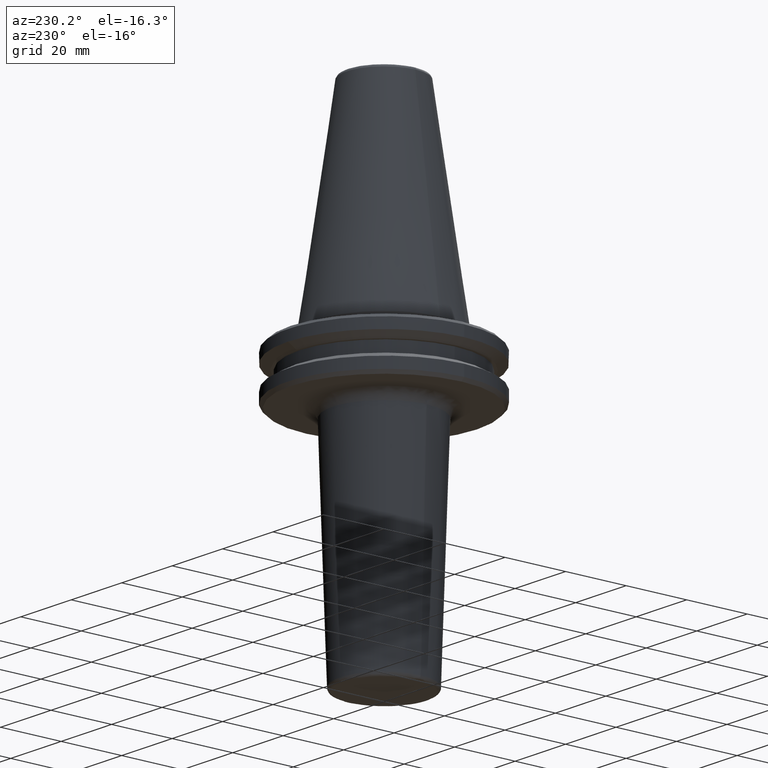
[diagram: clean part render]
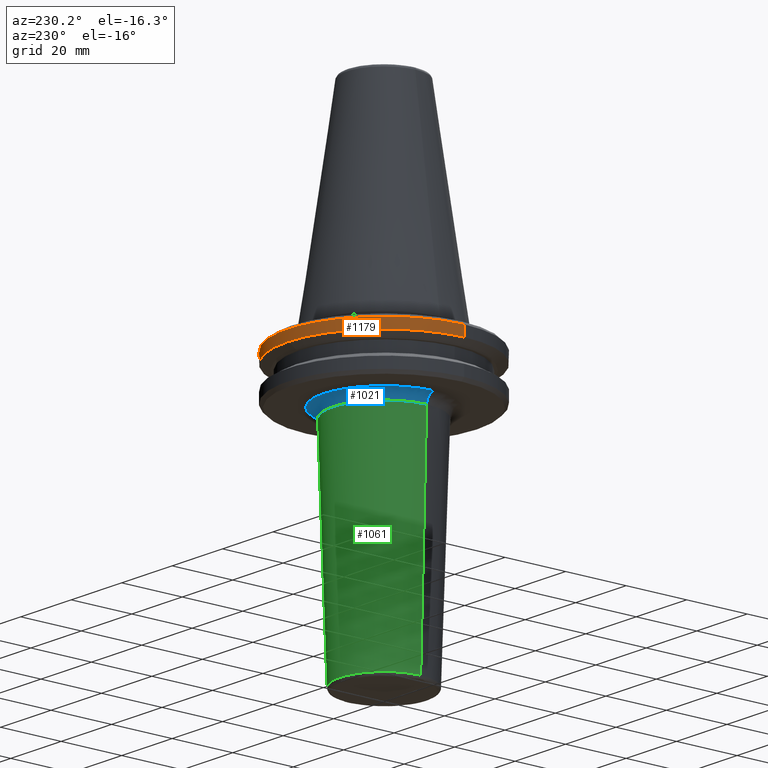
[diagram: same view with three faces highlighted in distinct colors, each labeled with its STEP entity id]
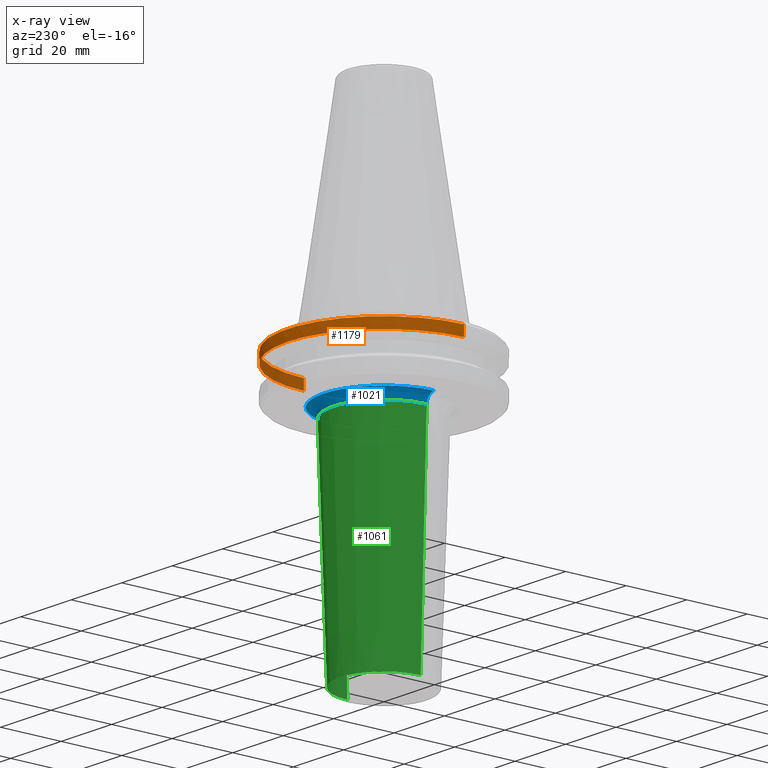
[diagram: x-ray of the same camera — body ghosted, the three highlighted faces saturated]
A machine part, auxiliary view with three faces highlighted in distinct colors.
The next image is the same camera in x-ray (body ghosted, the three faces saturated) — at least one of them is partly hidden behind the body in this view.
Their STEP definitions:

[orange] entity #1179 — the highlighted cylindrical surface (partial cylindrical patch) has radius 31.75 mm, axis along (0, 0, 1).
#19 = CARTESIAN_POINT ( 'NONE',  ( 3.888253587292846500E-015, 31.75000000000000000, -7.578163357943284800 ) ) ;
#80 = CIRCLE ( 'NONE', #944, 31.74999999999983300 ) ;
#120 = ORIENTED_EDGE ( 'NONE', *, *, #872, .T. ) ;
#130 = DIRECTION ( 'NONE',  ( 1.000000000000000000, 0.0000000000000000000, 0.0000000000000000000 ) ) ;
#139 = DIRECTION ( 'NONE',  ( -0.0000000000000000000, -0.0000000000000000000, 1.000000000000000000 ) ) ;
#147 = CARTESIAN_POINT ( 'NONE',  ( 0.0000000000000000000, 0.0000000000000000000, -4.199999999999926500 ) ) ;
#171 = AXIS2_PLACEMENT_3D ( 'NONE', #1142, #1003, #1284 ) ;
#213 = CARTESIAN_POINT ( 'NONE',  ( -31.75000000000000000, 3.888253587292846500E-015, -7.578163357943284800 ) ) ;
#223 = CARTESIAN_POINT ( 'NONE',  ( 31.74999999999983300, 0.0000000000000000000, -4.199999999999926500 ) ) ;
#258 = CARTESIAN_POINT ( 'NONE',  ( 31.75000000000000000, 0.0000000000000000000, -7.578163357943284800 ) ) ;
#365 = EDGE_LOOP ( 'NONE', ( #120, #1302, #1497, #884, #1115 ) ) ;
#436 = EDGE_CURVE ( 'NONE', #1039, #1320, #1125, .T. ) ;
#475 = EDGE_CURVE ( 'NONE', #1039, #723, #587, .T. ) ;
#587 = LINE ( 'NONE', #1376, #1318 ) ;
#609 = AXIS2_PLACEMENT_3D ( 'NONE', #620, #712, #718 ) ;
#620 = CARTESIAN_POINT ( 'NONE',  ( 0.0000000000000000000, 0.0000000000000000000, -7.578163357943284800 ) ) ;
#712 = DIRECTION ( 'NONE',  ( 0.0000000000000000000, 0.0000000000000000000, 1.000000000000000000 ) ) ;
#717 = VERTEX_POINT ( 'NONE', #213 ) ;
#718 = DIRECTION ( 'NONE',  ( 1.000000000000000000, 0.0000000000000000000, 0.0000000000000000000 ) ) ;
#723 = VERTEX_POINT ( 'NONE', #223 ) ;
#741 = DIRECTION ( 'NONE',  ( 0.0000000000000000000, 0.0000000000000000000, 1.000000000000000000 ) ) ;
#748 = CARTESIAN_POINT ( 'NONE',  ( 0.0000000000000000000, 0.0000000000000000000, -7.578163357943284800 ) ) ;
#819 = FACE_OUTER_BOUND ( 'NONE', #365, .T. ) ;
#829 = CIRCLE ( 'NONE', #609, 31.75000000000000000 ) ;
#872 = EDGE_CURVE ( 'NONE', #1320, #717, #829, .T. ) ;
#884 = ORIENTED_EDGE ( 'NONE', *, *, #475, .F. ) ;
#887 = VECTOR ( 'NONE', #1280, 1000.000000000000000 ) ;
#921 = CYLINDRICAL_SURFACE ( 'NONE', #171, 31.75000000000000000 ) ;
#944 = AXIS2_PLACEMENT_3D ( 'NONE', #147, #139, #130 ) ;
#1003 = DIRECTION ( 'NONE',  ( 0.0000000000000000000, 0.0000000000000000000, 1.000000000000000000 ) ) ;
#1039 = VERTEX_POINT ( 'NONE', #258 ) ;
#1040 = EDGE_CURVE ( 'NONE', #723, #1325, #80, .T. ) ;
#1115 = ORIENTED_EDGE ( 'NONE', *, *, #436, .T. ) ;
#1125 = CIRCLE ( 'NONE', #1168, 31.75000000000000000 ) ;
#1142 = CARTESIAN_POINT ( 'NONE',  ( 0.0000000000000000000, 0.0000000000000000000, 113.5216080541959500 ) ) ;
#1151 = LINE ( 'NONE', #1273, #887 ) ;
#1168 = AXIS2_PLACEMENT_3D ( 'NONE', #748, #741, #1508 ) ;
#1179 = ADVANCED_FACE ( 'NONE', ( #819 ), #921, .T. ) ;
#1261 = DIRECTION ( 'NONE',  ( 0.0000000000000000000, 0.0000000000000000000, 1.000000000000000000 ) ) ;
#1273 = CARTESIAN_POINT ( 'NONE',  ( -31.75000000000000000, 3.888253587292846500E-015, 113.5216080541959500 ) ) ;
#1280 = DIRECTION ( 'NONE',  ( 0.0000000000000000000, 0.0000000000000000000, 1.000000000000000000 ) ) ;
#1284 = DIRECTION ( 'NONE',  ( 1.000000000000000000, 0.0000000000000000000, 0.0000000000000000000 ) ) ;
#1285 = EDGE_CURVE ( 'NONE', #717, #1325, #1151, .T. ) ;
#1302 = ORIENTED_EDGE ( 'NONE', *, *, #1285, .T. ) ;
#1318 = VECTOR ( 'NONE', #1261, 1000.000000000000000 ) ;
#1320 = VERTEX_POINT ( 'NONE', #19 ) ;
#1325 = VERTEX_POINT ( 'NONE', #1426 ) ;
#1376 = CARTESIAN_POINT ( 'NONE',  ( 31.75000000000000000, 0.0000000000000000000, 113.5216080541959500 ) ) ;
#1426 = CARTESIAN_POINT ( 'NONE',  ( -31.74999999999983300, 3.888253587292836200E-015, -4.199999999999926500 ) ) ;
#1497 = ORIENTED_EDGE ( 'NONE', *, *, #1040, .F. ) ;
#1508 = DIRECTION ( 'NONE',  ( 1.000000000000000000, 0.0000000000000000000, 0.0000000000000000000 ) ) ;

[blue] entity #1021 — the highlighted face is a freeform B-spline surface patch.
#6 = CARTESIAN_POINT ( 'NONE',  ( 7.598485494639327900, 18.39434992628138600, -19.10000000000000100 ) ) ;
#11 = EDGE_CURVE ( 'NONE', #703, #547, #606, .T. ) ;
#21 = AXIS2_PLACEMENT_3D ( 'NONE', #215, #1501, #1225 ) ;
#39 = EDGE_CURVE ( 'NONE', #766, #826, #1429, .T. ) ;
#55 = CARTESIAN_POINT ( 'NONE',  ( 19.90166620396073300, 0.6085529503212857600, -19.10000000000000500 ) ) ;
#58 = CARTESIAN_POINT ( 'NONE',  ( -15.97558242757372900, 11.87727175151181300, -19.10000000000000500 ) ) ;
#63 = CARTESIAN_POINT ( 'NONE',  ( 19.90166620396073300, 0.0000000000000000000, -19.10000000000000500 ) ) ;
#64 = CARTESIAN_POINT ( 'NONE',  ( -15.24560217056686200, 12.82499818687935000, -19.10000000000000100 ) ) ;
#66 = EDGE_CURVE ( 'NONE', #766, #547, #1034, .T. ) ;
#70 = CARTESIAN_POINT ( 'NONE',  ( 18.89388723929875300, 6.267715761570081600, -19.10000000000000500 ) ) ;
#76 = CARTESIAN_POINT ( 'NONE',  ( 19.23083617400312000, 5.194768591320698000, -19.10000000000000500 ) ) ;
#102 = CARTESIAN_POINT ( 'NONE',  ( 16.90333148302327300, 0.0000000000000000000, -22.00005550930209000 ) ) ;
#106 = CARTESIAN_POINT ( 'NONE',  ( 8.406558014828048500, 18.04465368373723100, -19.10000000000001200 ) ) ;
#114 = CARTESIAN_POINT ( 'NONE',  ( 15.04383488236192300, 13.10131881861373100, -19.09999999999999800 ) ) ;
#141 = CARTESIAN_POINT ( 'NONE',  ( 18.25685931475489500, 7.950859837655827700, -19.10000000000000900 ) ) ;
#166 = CARTESIAN_POINT ( 'NONE',  ( -14.55824528529787000, 13.58698725340960500, -19.10000000000000900 ) ) ;
#184 = CARTESIAN_POINT ( 'NONE',  ( 3.898628062247354800, 19.51637052742025300, -19.10000000000000900 ) ) ;
#190 = CARTESIAN_POINT ( 'NONE',  ( 5.812745466972859100, 19.05315308159160300, -19.10000000000000500 ) ) ;
#194 = CARTESIAN_POINT ( 'NONE',  ( 10.96073024572635100, 16.61161293343491300, -19.10000000000000100 ) ) ;
#196 = CARTESIAN_POINT ( 'NONE',  ( 4.724686275076234000, 19.33754260911768300, -19.10000000000000500 ) ) ;
#197 = CARTESIAN_POINT ( 'NONE',  ( 0.0000000000000000000, 0.0000000000000000000, -22.00005550930209000 ) ) ;
#209 = CARTESIAN_POINT ( 'NONE',  ( 15.90600721118451400, 12.04007475394795000, -19.10000000000000100 ) ) ;
#214 = CARTESIAN_POINT ( 'NONE',  ( 16.70458015769348800, 10.81853029926495700, -19.10000000000000500 ) ) ;
#215 = CARTESIAN_POINT ( 'NONE',  ( -19.90166620396073300, 2.437251181437956700E-015, -22.10000000000000500 ) ) ;
#232 = CARTESIAN_POINT ( 'NONE',  ( 19.58312381656615000, 3.546534532317296800, -19.10000000000000100 ) ) ;
#235 = CARTESIAN_POINT ( 'NONE',  ( 16.97309617215207900, 10.39430603166016500, -19.10000000000000900 ) ) ;
#252 = CARTESIAN_POINT ( 'NONE',  ( 19.57308386510088000, 3.601540084186433800, -19.10000000000000500 ) ) ;
#279 = CARTESIAN_POINT ( 'NONE',  ( 6.725748720945180300, 18.74186887789922900, -19.10000000000001600 ) ) ;
#288 = CARTESIAN_POINT ( 'NONE',  ( -2.571572111785215500, 19.73902294037124600, -19.10000000000000900 ) ) ;
#297 = CARTESIAN_POINT ( 'NONE',  ( -3.097006395698181300, 19.66027751160029200, -19.10000000000000500 ) ) ;
#305 = CARTESIAN_POINT ( 'NONE',  ( 18.70568706075825500, 6.798577512691573500, -19.10000000000000500 ) ) ;
#308 = CARTESIAN_POINT ( 'NONE',  ( -3.359321256760603000, 19.61636097319980000, -19.10000000000000500 ) ) ;
#314 = CARTESIAN_POINT ( 'NONE',  ( 16.74915908291985300, 10.74937643075038600, -19.10000000000000500 ) ) ;
#317 = CARTESIAN_POINT ( 'NONE',  ( 3.661036126866240800, 19.56204254994694500, -19.10000000000000500 ) ) ;
#334 = CARTESIAN_POINT ( 'NONE',  ( 19.90166620396073300, 0.0000000000000000000, -19.10000000000000500 ) ) ;
#338 = FACE_OUTER_BOUND ( 'NONE', #1119, .T. ) ;
#357 = ORIENTED_EDGE ( 'NONE', *, *, #11, .F. ) ;
#372 = CARTESIAN_POINT ( 'NONE',  ( 18.60665554369093800, 7.062605429751516600, -19.10000000000000100 ) ) ;
#396 = CARTESIAN_POINT ( 'NONE',  ( 3.700678777715772100, 19.55458196215729700, -19.10000000000000500 ) ) ;
#402 = CARTESIAN_POINT ( 'NONE',  ( 2.424759400017324900, 19.79088342820656600, -19.10000000000000500 ) ) ;
#408 = CARTESIAN_POINT ( 'NONE',  ( 1.216930634841989000, 19.90163377541363900, -19.10000000000000100 ) ) ;
#412 = CARTESIAN_POINT ( 'NONE',  ( -0.6084653174210052900, 19.90168241823427300, -19.09999999999999800 ) ) ;
#420 = CARTESIAN_POINT ( 'NONE',  ( 18.53392269167737200, 7.250628934924967500, -19.10000000000000900 ) ) ;
#423 = CARTESIAN_POINT ( 'NONE',  ( -1.517485296806783300, 19.86016320579301100, -19.10000000000000900 ) ) ;
#428 = CARTESIAN_POINT ( 'NONE',  ( 11.03381702116087700, 16.56317078052143500, -19.10000000000000100 ) ) ;
#430 = CARTESIAN_POINT ( 'NONE',  ( -19.90166620396074000, 1.217461441101294300, -19.10000000000001200 ) ) ;
#446 = CARTESIAN_POINT ( 'NONE',  ( 7.869557974751641500, 18.28107397828527400, -19.10000000000000500 ) ) ;
#457 = AXIS2_PLACEMENT_3D ( 'NONE', #649, #630, #534 ) ;
#463 = CARTESIAN_POINT ( 'NONE',  ( 17.27539394088444200, 9.891434641472884000, -19.10000000000000500 ) ) ;
#474 = CARTESIAN_POINT ( 'NONE',  ( 11.17619927277234400, 16.46745170917846600, -19.10000000000000100 ) ) ;
#531 = CARTESIAN_POINT ( 'NONE',  ( -17.02554403890777100, 10.32763073298519400, -19.10000000000000500 ) ) ;
#534 = DIRECTION ( 'NONE',  ( 1.000000000000000000, 0.0000000000000000000, 0.0000000000000000000 ) ) ;
#541 = CARTESIAN_POINT ( 'NONE',  ( -16.61161293343448300, 10.96073024572747700, -19.10000000000000500 ) ) ;
#546 = CARTESIAN_POINT ( 'NONE',  ( 9.459978414387899500, 17.53233950041788700, -19.10000000000000500 ) ) ;
#547 = VERTEX_POINT ( 'NONE', #569 ) ;
#548 = CARTESIAN_POINT ( 'NONE',  ( -16.56317078052314400, 11.03381702115915900, -19.10000000000000100 ) ) ;
#556 = CARTESIAN_POINT ( 'NONE',  ( 10.32763073299417300, 17.02554403890431100, -19.10000000000000900 ) ) ;
#559 = CARTESIAN_POINT ( 'NONE',  ( -16.46745170918173100, 11.17619927276907700, -19.10000000000000500 ) ) ;
#569 = CARTESIAN_POINT ( 'NONE',  ( -19.90166620396073300, 2.437251181437956700E-015, -19.10000000000000500 ) ) ;
#576 = CARTESIAN_POINT ( 'NONE',  ( 11.38872373606291400, 16.32258852878667100, -19.10000000000000500 ) ) ;
#606 = B_SPLINE_CURVE_WITH_KNOTS ( 'NONE', 3,
 ( #63, #55, #1383, #1156, #1012, #992, #1404, #232, #1055, #252, #1123, #76, #70, #305, #372, #1486, #420, #1183, #141, #1492, #463, #235, #812, #314, #214, #209, #114, #892, #1479, #1317, #576, #474, #428, #194, #556, #546, #106, #446, #6, #1111, #680, #672, #279, #190, #196, #1112, #184, #866, #396, #317, #975, #402, #408, #412, #423, #288, #297, #308, #757, #763, #1471, #647, #653, #1089, #1456, #1464, #993, #1447, #752, #780, #989, #859, #666, #676, #777, #1348, #1354, #1228, #1234, #166, #64, #58, #639, #559, #548, #541, #531, #878, #658, #1378, #1106, #1361, #871, #1082, #967, #1099, #1367, #1247, #1449, #1374, #770, #1078, #855, #1209, #430, #1224 ),
 .UNSPECIFIED., .F., .F.,
 ( 4, 1, 1, 1, 1, 1, 2, 2, 1, 1, 1, 1, 2, 2, 1, 1, 1, 2, 2, 2, 1, 1, 1, 2, 2, 1, 1, 1, 1, 2, 2, 1, 1, 1, 1, 1, 2, 2, 2, 1, 1, 1, 1, 1, 2, 2, 1, 1, 1, 1, 2, 2, 1, 1, 1, 2, 2, 2, 1, 1, 1, 2, 2, 1, 1, 1, 1, 2, 2, 1, 1, 1, 1, 1, 2, 2, 4 ),
 ( 0.0000000000000000000, 0.03125000000000108200, 0.04687500000000162400, 0.05468750000000188700, 0.05859375000000202600, 0.06054687500000207500, 0.06152343750000208200, 0.06250000000000208200, 0.09375000000000227600, 0.1093750000000024100, 0.1171875000000024700, 0.1210937500000025300, 0.1230468750000025700, 0.1250000000000026100, 0.1562500000000028600, 0.1718750000000028900, 0.1796875000000029100, 0.1835937500000029700, 0.1875000000000030300, 0.2500000000000043300, 0.2812500000000050500, 0.2968750000000054400, 0.3046875000000056600, 0.3085937500000057700, 0.3125000000000058300, 0.3437500000000063800, 0.3593750000000067700, 0.3671875000000069400, 0.3710937500000070500, 0.3730468750000070500, 0.3750000000000070500, 0.4062500000000067700, 0.4218750000000067200, 0.4296875000000067200, 0.4335937500000067200, 0.4355468750000067200, 0.4365234375000067200, 0.4375000000000067700, 0.5000000000000060000, 0.5312500000000056600, 0.5468750000000054400, 0.5546875000000052200, 0.5585937500000051100, 0.5605468750000051100, 0.5615234375000050000, 0.5625000000000048800, 0.5937500000000050000, 0.6093750000000051100, 0.6171875000000052200, 0.6210937500000052200, 0.6230468750000051100, 0.6250000000000051100, 0.6562500000000050000, 0.6718750000000050000, 0.6796875000000050000, 0.6835937500000050000, 0.6875000000000050000, 0.7500000000000047700, 0.7812500000000045500, 0.7968750000000045500, 0.8046875000000044400, 0.8085937500000044400, 0.8125000000000044400, 0.8437500000000041100, 0.8593750000000038900, 0.8671875000000038900, 0.8710937500000037700, 0.8730468750000036600, 0.8750000000000036600, 0.9062500000000031100, 0.9218750000000027800, 0.9296875000000025500, 0.9335937500000024400, 0.9355468750000024400, 0.9365234375000023300, 0.9375000000000022200, 1.000000000000000000 ),
 .UNSPECIFIED. ) ;
#629 = CARTESIAN_POINT ( 'NONE',  ( -19.90166620396073300, 2.437251181437956700E-015, -19.10000000000000500 ) ) ;
#630 = DIRECTION ( 'NONE',  ( 0.0000000000000000000, 1.000000000000000000, 0.0000000000000000000 ) ) ;
#638 = CARTESIAN_POINT ( 'NONE',  ( -19.90166620396072600, 39.80333240792145200, -19.10000000000000900 ) ) ;
#639 = CARTESIAN_POINT ( 'NONE',  ( -16.32258852879208900, 11.38872373605748200, -19.10000000000000500 ) ) ;
#647 = CARTESIAN_POINT ( 'NONE',  ( -3.601540084186906300, 19.57308386510080200, -19.10000000000000100 ) ) ;
#649 = CARTESIAN_POINT ( 'NONE',  ( 19.90166620396073300, 0.0000000000000000000, -22.10000000000000500 ) ) ;
#653 = CARTESIAN_POINT ( 'NONE',  ( -4.255859014509368000, 19.45201853682077300, -19.10000000000000500 ) ) ;
#658 = CARTESIAN_POINT ( 'NONE',  ( -18.04465368374178200, 8.406558014816262400, -19.10000000000000900 ) ) ;
#659 = DIRECTION ( 'NONE',  ( 1.000000000000000000, 0.0000000000000000000, 0.0000000000000000000 ) ) ;
#666 = CARTESIAN_POINT ( 'NONE',  ( -9.891434641452452300, 17.27539394089751200, -19.10000000000000500 ) ) ;
#672 = CARTESIAN_POINT ( 'NONE',  ( 7.363194873656711400, 18.48949062872929600, -19.10000000000000500 ) ) ;
#676 = CARTESIAN_POINT ( 'NONE',  ( -10.39430603164824200, 16.97309617215971000, -19.10000000000000500 ) ) ;
#680 = CARTESIAN_POINT ( 'NONE',  ( 7.403821060719579400, 18.47326414180898600, -19.10000000000000900 ) ) ;
#703 = VERTEX_POINT ( 'NONE', #334 ) ;
#715 = CARTESIAN_POINT ( 'NONE',  ( 19.90166620396073300, 39.80333240792145200, -19.10000000000000900 ) ) ;
#721 = CARTESIAN_POINT ( 'NONE',  ( 19.90166620396073300, 0.0000000000000000000, -19.10000000000000500 ) ) ;
#729 = CARTESIAN_POINT ( 'NONE',  ( -18.19038921177860500, 2.227680192344921700E-015, -19.10000000000000500 ) ) ;
#734 = CARTESIAN_POINT ( 'NONE',  ( -18.19038921177860100, 36.38077842355720300, -19.10000000000000500 ) ) ;
#739 = CARTESIAN_POINT ( 'NONE',  ( 18.19038921177860500, 36.38077842355720300, -19.10000000000000500 ) ) ;
#746 = CARTESIAN_POINT ( 'NONE',  ( 18.19038921177860500, 0.0000000000000000000, -19.10000000000000500 ) ) ;
#752 = CARTESIAN_POINT ( 'NONE',  ( -7.250628934923097000, 18.53392269167765600, -19.10000000000000100 ) ) ;
#757 = CARTESIAN_POINT ( 'NONE',  ( -3.490378117068294400, 19.59326674799579800, -19.10000000000000500 ) ) ;
#763 = CARTESIAN_POINT ( 'NONE',  ( -3.546523792152270500, 19.58312580376471200, -19.10000000000000500 ) ) ;
#766 = VERTEX_POINT ( 'NONE', #1475 ) ;
#770 = CARTESIAN_POINT ( 'NONE',  ( -19.55458196215673200, 3.700678777717206100, -19.10000000000000100 ) ) ;
#777 = CARTESIAN_POINT ( 'NONE',  ( -10.60763933823960600, 16.83929933825730500, -19.10000000000000500 ) ) ;
#780 = CARTESIAN_POINT ( 'NONE',  ( -7.286625428863263000, 18.51980372642518800, -19.10000000000000500 ) ) ;
#812 = CARTESIAN_POINT ( 'NONE',  ( 16.83929933825271500, 10.60763933824678200, -19.10000000000000500 ) ) ;
#818 = ORIENTED_EDGE ( 'NONE', *, *, #39, .F. ) ;
#821 =( BOUNDED_SURFACE ( )  B_SPLINE_SURFACE ( 3, 3, ( 
 ( #1182, #948, #937, #852 ),
 ( #849, #841, #836, #831 ),
 ( #746, #739, #734, #729 ),
 ( #721, #715, #638, #629 ) ),
 .UNSPECIFIED., .F., .F., .T. ) 
 B_SPLINE_SURFACE_WITH_KNOTS ( ( 4, 4 ),
 ( 4, 4 ),
 ( 0.0000000000000000000, 1.000000000000000000 ),
 ( 0.0000000000000000000, 1.000000000000000000 ),
 .UNSPECIFIED. ) 
 GEOMETRIC_REPRESENTATION_ITEM ( )  RATIONAL_B_SPLINE_SURFACE ( (
 ( 1.000000000000000000, 0.3333333333333334300, 0.3333333333333334300, 1.000000000000000000),
 ( 0.8125259019625589200, 0.2708419673208530300, 0.2708419673208530300, 0.8125259019625589200),
 ( 0.8125259019625589200, 0.2708419673208530300, 0.2708419673208530300, 0.8125259019625589200),
 ( 1.000000000000000000, 0.3333333333333334300, 0.3333333333333334300, 1.000000000000000000) ) ) 
 REPRESENTATION_ITEM ( '' )  SURFACE ( )  );
#826 = VERTEX_POINT ( 'NONE', #102 ) ;
#831 = CARTESIAN_POINT ( 'NONE',  ( -16.96034238549883700, 2.077042901484432900E-015, -20.28972843503505900 ) ) ;
#836 = CARTESIAN_POINT ( 'NONE',  ( -16.96034238549883000, 33.92068477099766000, -20.28972843503505900 ) ) ;
#841 = CARTESIAN_POINT ( 'NONE',  ( 16.96034238549883400, 33.92068477099766000, -20.28972843503505900 ) ) ;
#849 = CARTESIAN_POINT ( 'NONE',  ( 16.96034238549883700, 0.0000000000000000000, -20.28972843503505900 ) ) ;
#852 = CARTESIAN_POINT ( 'NONE',  ( -16.90333148302326900, 2.070061079561112700E-015, -22.00005550930209000 ) ) ;
#855 = CARTESIAN_POINT ( 'NONE',  ( -19.56595427102708800, 3.640067678153116900, -19.10000000000000100 ) ) ;
#859 = CARTESIAN_POINT ( 'NONE',  ( -8.865317161797088700, 17.84041010356866900, -19.10000000000000500 ) ) ;
#866 = CARTESIAN_POINT ( 'NONE',  ( 3.760117208533674000, 19.54330316152550400, -19.10000000000000100 ) ) ;
#871 = CARTESIAN_POINT ( 'NONE',  ( -18.47326414180941300, 7.403821060718473600, -19.10000000000000900 ) ) ;
#878 = CARTESIAN_POINT ( 'NONE',  ( -17.53233950042395500, 9.459978414372189400, -19.10000000000000500 ) ) ;
#892 = CARTESIAN_POINT ( 'NONE',  ( 13.58698725341668700, 14.55824528529078400, -19.09999999999999800 ) ) ;
#911 = CIRCLE ( 'NONE', #457, 2.999999999999999100 ) ;
#937 = CARTESIAN_POINT ( 'NONE',  ( -16.90333148302326500, 33.80666296604653100, -22.00005550930209400 ) ) ;
#948 = CARTESIAN_POINT ( 'NONE',  ( 16.90333148302326900, 33.80666296604653100, -22.00005550930209400 ) ) ;
#967 = CARTESIAN_POINT ( 'NONE',  ( -18.74186887789468500, 6.725748720956852700, -19.10000000000000500 ) ) ;
#975 = CARTESIAN_POINT ( 'NONE',  ( 3.640064938850050300, 19.56595477801714700, -19.10000000000000100 ) ) ;
#989 = CARTESIAN_POINT ( 'NONE',  ( -7.950859837640272200, 18.25685931476484600, -19.10000000000000900 ) ) ;
#992 = CARTESIAN_POINT ( 'NONE',  ( 19.61635432281416400, 3.359357199942360600, -19.10000000000000900 ) ) ;
#993 = CARTESIAN_POINT ( 'NONE',  ( -7.062605429745297600, 18.60665554369190400, -19.10000000000000900 ) ) ;
#1012 = CARTESIAN_POINT ( 'NONE',  ( 19.66026509754710700, 3.097073489637464300, -19.10000000000000900 ) ) ;
#1021 = ADVANCED_FACE ( 'NONE', ( #338 ), #821, .F. ) ;
#1034 = CIRCLE ( 'NONE', #21, 2.999999999999999100 ) ;
#1055 = CARTESIAN_POINT ( 'NONE',  ( 19.57631007565930800, 3.583954887416756800, -19.10000000000000900 ) ) ;
#1078 = CARTESIAN_POINT ( 'NONE',  ( -19.56204254994666800, 3.661036126866968700, -19.10000000000000100 ) ) ;
#1082 = CARTESIAN_POINT ( 'NONE',  ( -18.48949062872958000, 7.363194873655980500, -19.10000000000000500 ) ) ;
#1089 = CARTESIAN_POINT ( 'NONE',  ( -5.194768591294165500, 19.23083617400723700, -19.10000000000000100 ) ) ;
#1092 = EDGE_CURVE ( 'NONE', #826, #703, #911, .T. ) ;
#1099 = CARTESIAN_POINT ( 'NONE',  ( -19.05315308158366600, 5.812745466993293400, -19.10000000000000500 ) ) ;
#1106 = CARTESIAN_POINT ( 'NONE',  ( -18.39434992628281400, 7.598485494635647300, -19.10000000000000500 ) ) ;
#1111 = CARTESIAN_POINT ( 'NONE',  ( 7.481760333146739100, 18.44183943272017200, -19.10000000000000500 ) ) ;
#1112 = CARTESIAN_POINT ( 'NONE',  ( 4.174934496895686700, 19.46004352868530100, -19.10000000000000900 ) ) ;
#1119 = EDGE_LOOP ( 'NONE', ( #818, #1192, #357, #1340 ) ) ;
#1123 = CARTESIAN_POINT ( 'NONE',  ( 19.45201853681841800, 4.255859014524538100, -19.09999999999999800 ) ) ;
#1156 = CARTESIAN_POINT ( 'NONE',  ( 19.73900165913721900, 2.571687129966842900, -19.10000000000001200 ) ) ;
#1182 = CARTESIAN_POINT ( 'NONE',  ( 16.90333148302326900, 0.0000000000000000000, -22.00005550930209000 ) ) ;
#1183 = CARTESIAN_POINT ( 'NONE',  ( 18.51980372642581700, 7.286625428862290500, -19.10000000000000500 ) ) ;
#1192 = ORIENTED_EDGE ( 'NONE', *, *, #66, .T. ) ;
#1209 = CARTESIAN_POINT ( 'NONE',  ( -19.79091587557025300, 2.424584084621435000, -19.10000000000000900 ) ) ;
#1224 = CARTESIAN_POINT ( 'NONE',  ( -19.90166620396073300, 2.437251181437956700E-015, -19.10000000000000500 ) ) ;
#1225 = DIRECTION ( 'NONE',  ( -1.000000000000000000, 1.224646799147353500E-016, 0.0000000000000000000 ) ) ;
#1228 = CARTESIAN_POINT ( 'NONE',  ( -12.04007475394670300, 15.90600721118577400, -19.10000000000001200 ) ) ;
#1234 = CARTESIAN_POINT ( 'NONE',  ( -13.10131881859956100, 15.04383488237610100, -19.10000000000000500 ) ) ;
#1247 = CARTESIAN_POINT ( 'NONE',  ( -19.46004352868183000, 4.174934496904622700, -19.10000000000000900 ) ) ;
#1252 = DIRECTION ( 'NONE',  ( -0.0000000000000000000, -0.0000000000000000000, -1.000000000000000000 ) ) ;
#1317 = CARTESIAN_POINT ( 'NONE',  ( 11.87727175152111800, 15.97558242756444000, -19.10000000000000500 ) ) ;
#1340 = ORIENTED_EDGE ( 'NONE', *, *, #1092, .F. ) ;
#1348 = CARTESIAN_POINT ( 'NONE',  ( -10.74937643074661200, 16.74915908292226200, -19.10000000000000500 ) ) ;
#1354 = CARTESIAN_POINT ( 'NONE',  ( -10.81853029926502800, 16.70458015769340300, -19.10000000000000500 ) ) ;
#1361 = CARTESIAN_POINT ( 'NONE',  ( -18.44183943272101100, 7.481760333144585200, -19.10000000000000500 ) ) ;
#1367 = CARTESIAN_POINT ( 'NONE',  ( -19.33754260911172600, 4.724686275091554100, -19.10000000000000500 ) ) ;
#1368 = AXIS2_PLACEMENT_3D ( 'NONE', #197, #1252, #659 ) ;
#1374 = CARTESIAN_POINT ( 'NONE',  ( -19.54330316152454500, 3.760117208536154300, -19.10000000000000900 ) ) ;
#1378 = CARTESIAN_POINT ( 'NONE',  ( -18.28107397828792500, 7.869557974744775000, -19.10000000000000500 ) ) ;
#1383 = CARTESIAN_POINT ( 'NONE',  ( 19.86013483081430700, 1.517638654382290000, -19.10000000000000500 ) ) ;
#1404 = CARTESIAN_POINT ( 'NONE',  ( 19.59326331196322700, 3.490396687712206300, -19.10000000000000900 ) ) ;
#1429 = CIRCLE ( 'NONE', #1368, 16.90333148302326900 ) ;
#1447 = CARTESIAN_POINT ( 'NONE',  ( -7.175459617380537800, 18.56315673042042400, -19.10000000000000500 ) ) ;
#1449 = CARTESIAN_POINT ( 'NONE',  ( -19.51637052741838500, 3.898628062252141600, -19.10000000000000500 ) ) ;
#1456 = CARTESIAN_POINT ( 'NONE',  ( -6.267715761550176600, 18.89388723930182600, -19.10000000000000100 ) ) ;
#1464 = CARTESIAN_POINT ( 'NONE',  ( -6.798577512679961500, 18.70568706076006300, -19.10000000000000500 ) ) ;
#1471 = CARTESIAN_POINT ( 'NONE',  ( -3.583949453149989100, 19.57631108113427500, -19.10000000000000900 ) ) ;
#1475 = CARTESIAN_POINT ( 'NONE',  ( -16.90333148302327300, 2.070061079561113100E-015, -22.00005550930209000 ) ) ;
#1479 = CARTESIAN_POINT ( 'NONE',  ( 12.82499818689175100, 15.24560217055447400, -19.10000000000000500 ) ) ;
#1486 = CARTESIAN_POINT ( 'NONE',  ( 18.56315673041985500, 7.175459617384182000, -19.10000000000000900 ) ) ;
#1492 = CARTESIAN_POINT ( 'NONE',  ( 17.84041010355123200, 8.865317161824320300, -19.10000000000000500 ) ) ;
#1501 = DIRECTION ( 'NONE',  ( -1.224646799147353200E-016, -1.000000000000000000, 0.0000000000000000000 ) ) ;

[green] entity #1061 — the highlighted conical surface has half-angle 1.909 deg.
#13 = ORIENTED_EDGE ( 'NONE', *, *, #39, .T. ) ;
#39 = EDGE_CURVE ( 'NONE', #766, #826, #1429, .T. ) ;
#94 = DIRECTION ( 'NONE',  ( 0.03331483023263854400, 0.0000000000000000000, 0.9994449069791543300 ) ) ;
#100 = CARTESIAN_POINT ( 'NONE',  ( 16.90333148302327300, 0.0000000000000000000, -22.00005550930206500 ) ) ;
#102 = CARTESIAN_POINT ( 'NONE',  ( 16.90333148302327300, 0.0000000000000000000, -22.00005550930209000 ) ) ;
#117 = AXIS2_PLACEMENT_3D ( 'NONE', #949, #1451, #1457 ) ;
#137 = VECTOR ( 'NONE', #1407, 1000.000000000000000 ) ;
#197 = CARTESIAN_POINT ( 'NONE',  ( 0.0000000000000000000, 0.0000000000000000000, -22.00005550930209000 ) ) ;
#271 = EDGE_CURVE ( 'NONE', #301, #766, #1193, .T. ) ;
#301 = VERTEX_POINT ( 'NONE', #1462 ) ;
#358 = CIRCLE ( 'NONE', #1519, 14.53222283899224700 ) ;
#391 = DIRECTION ( 'NONE',  ( 1.000000000000000000, 0.0000000000000000000, 9.549666256546906800E-016 ) ) ;
#393 = ORIENTED_EDGE ( 'NONE', *, *, #271, .T. ) ;
#398 = DIRECTION ( 'NONE',  ( 0.0000000000000000000, 0.0000000000000000000, 1.000000000000000000 ) ) ;
#404 = CARTESIAN_POINT ( 'NONE',  ( 0.0000000000000000000, 0.0000000000000000000, -93.13331483023262100 ) ) ;
#625 = EDGE_LOOP ( 'NONE', ( #1048, #393, #13, #1413 ) ) ;
#637 = CONICAL_SURFACE ( 'NONE', #117, 16.90333148302327300, 0.03332099587824726600 ) ;
#659 = DIRECTION ( 'NONE',  ( 1.000000000000000000, 0.0000000000000000000, 0.0000000000000000000 ) ) ;
#766 = VERTEX_POINT ( 'NONE', #1475 ) ;
#826 = VERTEX_POINT ( 'NONE', #102 ) ;
#858 = VECTOR ( 'NONE', #94, 1000.000000000000000 ) ;
#949 = CARTESIAN_POINT ( 'NONE',  ( 0.0000000000000000000, 0.0000000000000000000, -22.00005550930206500 ) ) ;
#987 = FACE_OUTER_BOUND ( 'NONE', #625, .T. ) ;
#1005 = LINE ( 'NONE', #100, #858 ) ;
#1048 = ORIENTED_EDGE ( 'NONE', *, *, #1114, .T. ) ;
#1061 = ADVANCED_FACE ( 'NONE', ( #987 ), #637, .T. ) ;
#1114 = EDGE_CURVE ( 'NONE', #1342, #301, #358, .T. ) ;
#1149 = CARTESIAN_POINT ( 'NONE',  ( -16.90333148302327300, 2.070061079561113100E-015, -22.00005550930206500 ) ) ;
#1193 = LINE ( 'NONE', #1149, #137 ) ;
#1207 = CARTESIAN_POINT ( 'NONE',  ( 14.53222283899224700, 0.0000000000000000000, -93.13331483023260700 ) ) ;
#1252 = DIRECTION ( 'NONE',  ( -0.0000000000000000000, -0.0000000000000000000, -1.000000000000000000 ) ) ;
#1300 = EDGE_CURVE ( 'NONE', #1342, #826, #1005, .T. ) ;
#1342 = VERTEX_POINT ( 'NONE', #1207 ) ;
#1368 = AXIS2_PLACEMENT_3D ( 'NONE', #197, #1252, #659 ) ;
#1407 = DIRECTION ( 'NONE',  ( -0.03331483023263854400, 4.079890020853826600E-018, 0.9994449069791543300 ) ) ;
#1413 = ORIENTED_EDGE ( 'NONE', *, *, #1300, .F. ) ;
#1429 = CIRCLE ( 'NONE', #1368, 16.90333148302326900 ) ;
#1451 = DIRECTION ( 'NONE',  ( 0.0000000000000000000, 0.0000000000000000000, 1.000000000000000000 ) ) ;
#1457 = DIRECTION ( 'NONE',  ( 1.000000000000000000, 0.0000000000000000000, 0.0000000000000000000 ) ) ;
#1462 = CARTESIAN_POINT ( 'NONE',  ( -14.53222283899224700, 1.924872548993952700E-015, -93.13331483023262100 ) ) ;
#1475 = CARTESIAN_POINT ( 'NONE',  ( -16.90333148302327300, 2.070061079561113100E-015, -22.00005550930209000 ) ) ;
#1519 = AXIS2_PLACEMENT_3D ( 'NONE', #404, #398, #391 ) ;